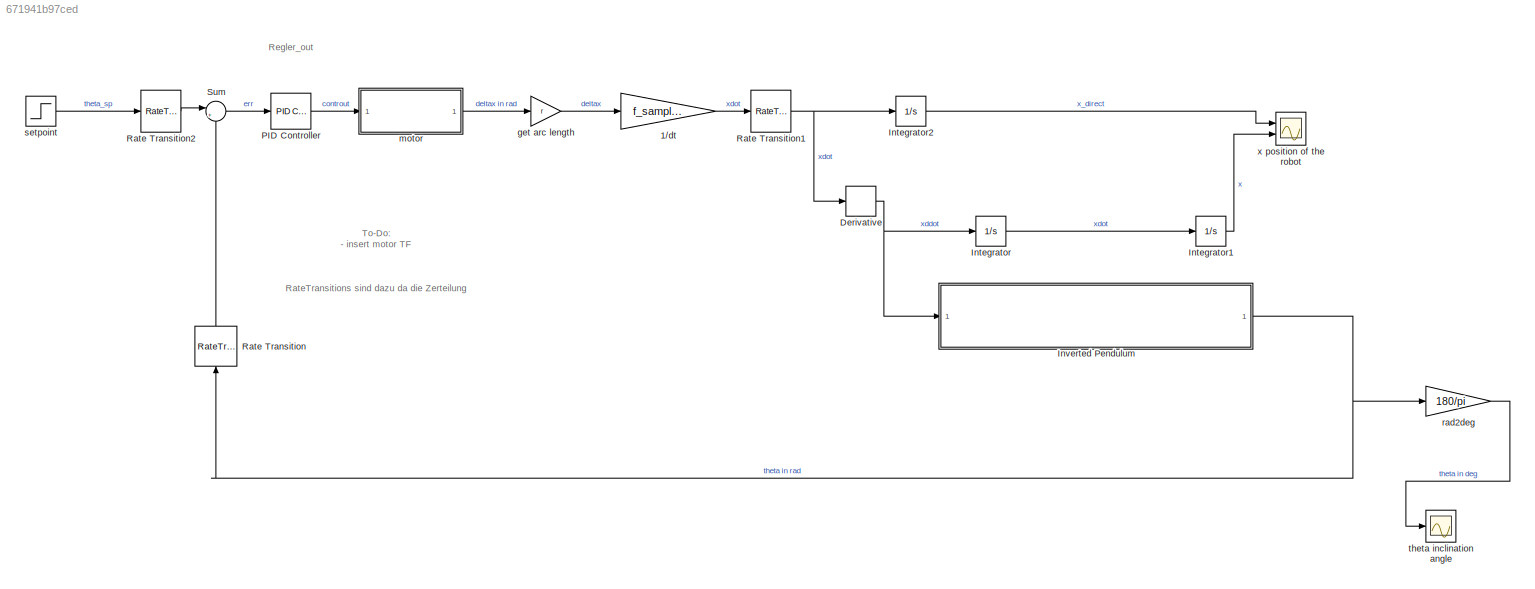
MODEL slx_671941b97ced
KIND model
CONFIG AbsTol = 1e-5
CONFIG FixedStep = auto
CONFIG MaxStep = 1e-3
CONFIG MinStep = 1e-6
CONFIG RelTol = 1e-5
CONFIG SampleTimeConstraint = Unconstrained
CONFIG Solver = VariableStepAuto
CONFIG SolverMode = Auto
CONFIG SolverName = VariableStepAuto
CONFIG StartTime = 0.0
CONFIG StopTime = 10
BLOCK [Gain] 1//dt
  Gain = f_sampling
  OutDataTypeStr = Inherit: Inherit via internal rule
  ParamDataTypeStr = Inherit: Inherit via internal rule
  SaturateOnIntegerOverflow = off
BLOCK [Derivative] Derivative
BLOCK [Integrator] Integrator
  Ports = [1, 1]
BLOCK [Integrator] Integrator1
  Ports = [1, 1]
BLOCK [Integrator] Integrator2
  Ports = [1, 1]
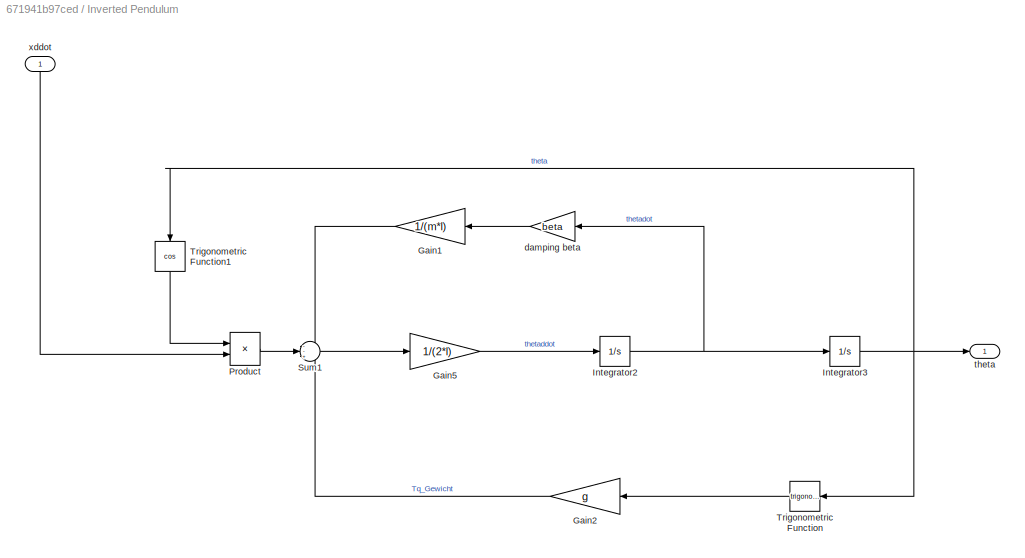
BLOCK [SubSystem] Inverted Pendulum
  Ports = [1, 1]
  RequestExecContextInheritance = off
  Variant = off
BLOCK [Gain] Inverted Pendulum/Gain1
  Gain = 1/(m*l)
  OutDataTypeStr = Inherit: Inherit via internal rule
  ParamDataTypeStr = Inherit: Inherit via internal rule
  SaturateOnIntegerOverflow = off
BLOCK [Gain] Inverted Pendulum/Gain2
  Gain = g
  OutDataTypeStr = Inherit: Inherit via internal rule
  ParamDataTypeStr = Inherit: Inherit via internal rule
  SaturateOnIntegerOverflow = off
BLOCK [Gain] Inverted Pendulum/Gain5
  Gain = 1/(2*l)
  OutDataTypeStr = Inherit: Inherit via internal rule
  ParamDataTypeStr = Inherit: Inherit via internal rule
  SaturateOnIntegerOverflow = off
BLOCK [Integrator] Inverted Pendulum/Integrator2
  Ports = [1, 1]
BLOCK [Integrator] Inverted Pendulum/Integrator3
  InitialCondition = 0*pi/180
  Ports = [1, 1]
BLOCK [Product] Inverted Pendulum/Product
  InputSameDT = off
  Inputs = **
  OutDataTypeStr = Inherit: Inherit via internal rule
  Ports = [2, 1]
  RndMeth = Floor
  SaturateOnIntegerOverflow = off
BLOCK [Sum] Inverted Pendulum/Sum1
  IconShape = round
  InputSameDT = off
  Inputs = --+
  OutDataTypeStr = Inherit: Inherit via internal rule
  Ports = [3, 1]
  SaturateOnIntegerOverflow = off
BLOCK [Trigonometry] Inverted Pendulum/Trigonometric Function
  Ports = [1, 1]
BLOCK [Trigonometry] Inverted Pendulum/Trigonometric Function1
  Operator = cos
  Ports = [1, 1]
BLOCK [Gain] Inverted Pendulum/damping beta
  Gain = beta
  OutDataTypeStr = Inherit: Inherit via internal rule
  ParamDataTypeStr = Inherit: Inherit via internal rule
  SaturateOnIntegerOverflow = off
BLOCK [Outport] Inverted Pendulum/theta
  IconDisplay = Port number
BLOCK [Inport] Inverted Pendulum/xddot
  IconDisplay = Port number
BLOCK [Reference] PID Controller  REF=simulink/Continuous/PID Controller
  Ports = [1, 1]
  SourceBlock = simulink/Continuous/PID Controller
  SourceType = PID 1dof
BLOCK [RateTransition] Rate Transition
  OutPortSampleTime = 1/f_sampling
BLOCK [RateTransition] Rate Transition1
  OutPortSampleTime = 1/f_sampling
  OutPortSampleTimeOpt = Inherit
BLOCK [RateTransition] Rate Transition2
  OutPortSampleTime = 1/f_sampling
BLOCK [Sum] Sum
  IconShape = round
  InputSameDT = off
  Inputs = |+-
  OutDataTypeStr = Inherit: Inherit via internal rule
  Ports = [2, 1]
  SaturateOnIntegerOverflow = off
BLOCK [Gain] get arc length
  Gain = r
  OutDataTypeStr = Inherit: Inherit via internal rule
  ParamDataTypeStr = Inherit: Inherit via internal rule
  SaturateOnIntegerOverflow = off
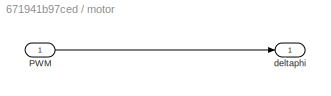
BLOCK [SubSystem] motor
  Ports = [1, 1]
  RequestExecContextInheritance = off
  Variant = off
BLOCK [Inport] motor/PWM
  IconDisplay = Port number
BLOCK [Outport] motor/deltaphi
  IconDisplay = Port number
BLOCK [Gain] rad2deg
  Gain = 180/pi
  OutDataTypeStr = Inherit: Inherit via internal rule
  ParamDataTypeStr = Inherit: Inherit via internal rule
  SaturateOnIntegerOverflow = off
BLOCK [Step] setpoint
  After = 0*pi/180
  SampleTime = 0
  Time = 20
BLOCK [Scope] theta inclination angle
  Ports = [1]
  ScopeSpecificationString = Simulink.scopes.TimeScopeBlockCfg('CurrentConfiguration', extmgr.ConfigurationSet(extmgr.Configuration('Core','General UI',true),extmgr.Configuration('Core','Source UI',true),extmgr.Configuration('Sources','WiredSimulink',true,'DataLoggingVariableName','ScopeData1','DataLoggingSaveFormat','Array','DataLoggingDecimation','1','DataLoggingDecimateData',true),extmgr.Configuration('Visuals','Time Domai...<+1597ch>
BLOCK [Scope] x position of the robot
  NumInputPorts = 2
  Ports = [2]
  ScopeSpecificationString = Simulink.scopes.TimeScopeBlockCfg('CurrentConfiguration', extmgr.ConfigurationSet(extmgr.Configuration('Core','General UI',true),extmgr.Configuration('Core','Source UI',true),extmgr.Configuration('Sources','WiredSimulink',true,'DataLoggingVariableName','ScopeData2','DataLoggingSaveFormat','Array','DataLoggingDecimation','1','DataLoggingDecimateData',true),extmgr.Configuration('Visuals','Time Domai...<+1485ch>
ANNOTATION (root): Regler_out
ANNOTATION (root): To-Do: - insert motor TF RateTransitions sind dazu da die Zerteilung in einzeilne "Datenpakte" zu simulieren (Arduino kann nicht kontinuierlich senden) Variables: r = wheel radius l = m =
LINE 1//dt:1 -> Rate Transition1:1
NET Derivative:1 -> Integrator:1, Inverted Pendulum:1
LINE Integrator1:1 -> x position of the robot:2
LINE Integrator2:1 -> x position of the robot:1
LINE Integrator:1 -> Integrator1:1
LINE Inverted Pendulum/Gain1:1 -> Inverted Pendulum/Sum1:1
LINE Inverted Pendulum/Gain2:1 -> Inverted Pendulum/Sum1:3
LINE Inverted Pendulum/Gain5:1 -> Inverted Pendulum/Integrator2:1
NET Inverted Pendulum/Integrator2:1 -> Inverted Pendulum/Integrator3:1, Inverted Pendulum/damping beta:1
NET Inverted Pendulum/Integrator3:1 -> Inverted Pendulum/Trigonometric Function1:1, Inverted Pendulum/Trigonometric Function:1, Inverted Pendulum/theta:1
LINE Inverted Pendulum/Product:1 -> Inverted Pendulum/Sum1:2
LINE Inverted Pendulum/Sum1:1 -> Inverted Pendulum/Gain5:1
LINE Inverted Pendulum/Trigonometric Function1:1 -> Inverted Pendulum/Product:1
LINE Inverted Pendulum/Trigonometric Function:1 -> Inverted Pendulum/Gain2:1
LINE Inverted Pendulum/damping beta:1 -> Inverted Pendulum/Gain1:1
LINE Inverted Pendulum/xddot:1 -> Inverted Pendulum/Product:2
NET Inverted Pendulum:1 -> Rate Transition:1, rad2deg:1
LINE PID Controller:1 -> motor:1
NET Rate Transition1:1 -> Derivative:1, Integrator2:1
LINE Rate Transition2:1 -> Sum:1
LINE Rate Transition:1 -> Sum:2
LINE Sum:1 -> PID Controller:1
LINE get arc length:1 -> 1//dt:1
LINE motor/PWM:1 -> motor/deltaphi:1
LINE motor:1 -> get arc length:1
LINE rad2deg:1 -> theta inclination angle:1
LINE setpoint:1 -> Rate Transition2:1
note: NET lines group one-source signal fan-out (src -> all destinations, sorted); 1:1 wires keep LINE
